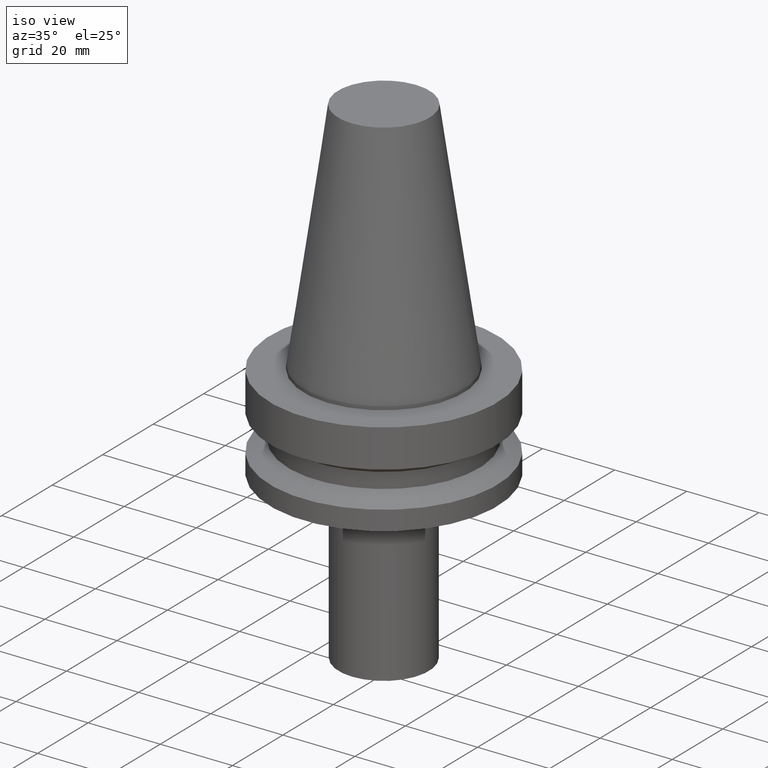
[diagram: clean part render]
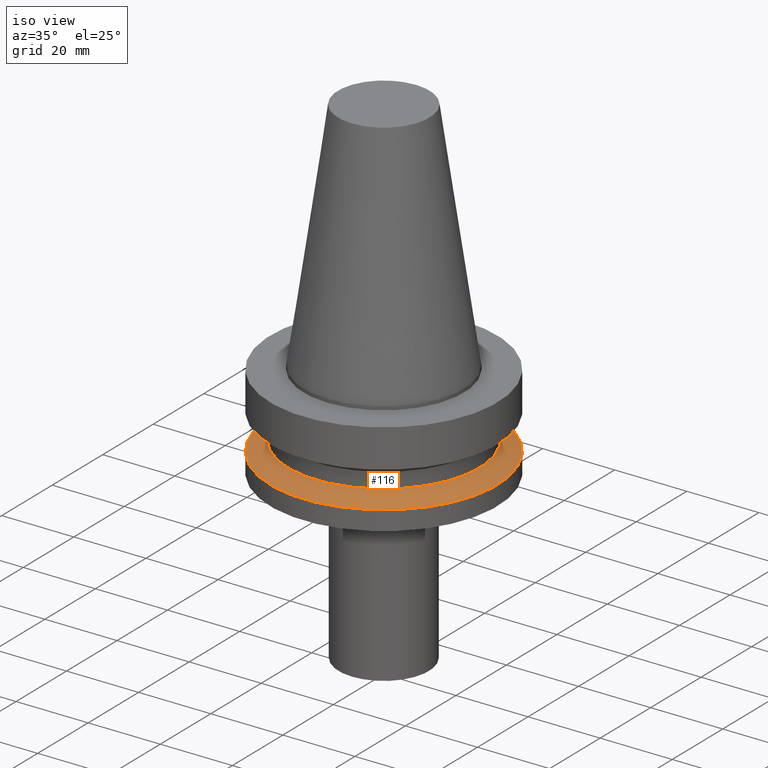
[diagram: same view with one face highlighted and labeled with its STEP entity id]
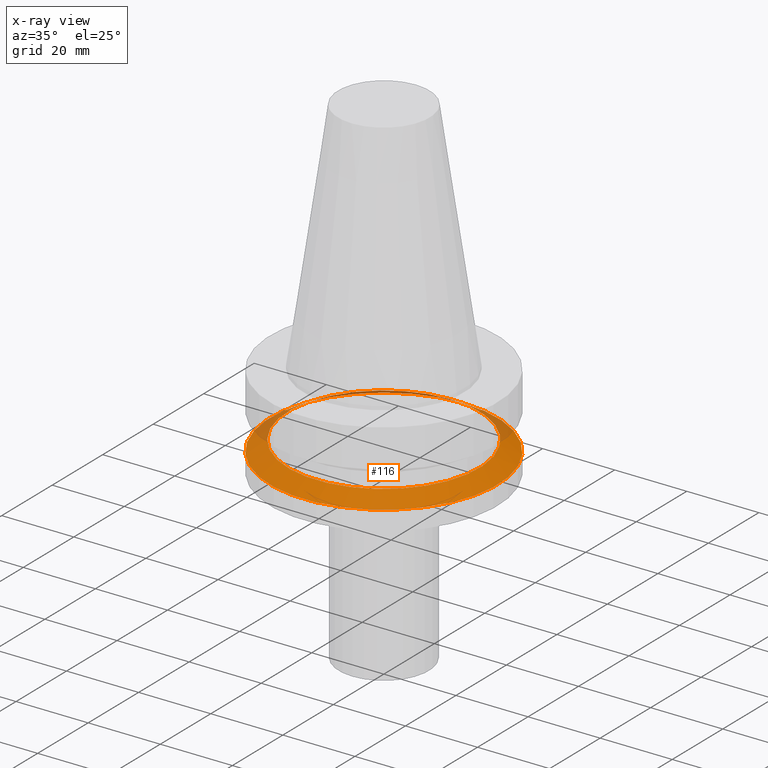
[diagram: x-ray of the same camera — body ghosted, the highlighted face saturated]
A machine part, iso view. The second image highlights one B-rep face of the part: STEP entity #116.
The next image is the same camera in x-ray: the body ghosted, the highlighted face saturated — about 11% of this face is hidden behind the body in this view.
In plain terms, the highlighted conical surface has half-angle 60 deg.
Its self-contained STEP definition (entity closure, byte-faithful):
#67=EDGE_CURVE('Unnamed[1]',#163,#163,#164,.T.);
#116=ADVANCED_FACE('Unnamed[1]',(#237,#238),#239,.T.);
#121=EDGE_CURVE('Unnamed[1]',#246,#246,#247,.T.);
#163=VERTEX_POINT('',#286);
#164=CIRCLE('',#287,26.5);
#237=FACE_BOUND('',#378,.T.);
#238=FACE_BOUND('',#379,.T.);
#239=CONICAL_SURFACE('',#380,29.0000000000003,1.04719755119651);
#246=VERTEX_POINT('',#389);
#247=CIRCLE('',#390,31.5000000000007);
#286=CARTESIAN_POINT('',(1.1479681728942E-015,26.5,-18.7477430013855));
#287=AXIS2_PLACEMENT_3D('',#419,#420,#421);
#378=EDGE_LOOP('',(#500));
#379=EDGE_LOOP('',(#501));
#380=AXIS2_PLACEMENT_3D('',#502,#503,#504);
#389=CARTESIAN_POINT('',(1.32473071268174E-015,31.5000000000007,-21.6344943473346));
#390=AXIS2_PLACEMENT_3D('',#511,#512,#513);
#419=CARTESIAN_POINT('',(1.1479681728942E-015,3.69466861504035E-014,-18.7477430013855));
#420=DIRECTION('',(6.12323399573676E-017,-4.72374929569225E-016,-1.0));
#421=DIRECTION('',(2.40974695439514E-032,1.0,-4.72374929569225E-016));
#500=ORIENTED_EDGE('',*,*,#121,.F.);
#501=ORIENTED_EDGE('',*,*,#67,.T.);
#502=CARTESIAN_POINT('',(1.23634944278797E-015,3.62648716685402E-014,-20.1911186743601));
#503=DIRECTION('',(6.12323399573677E-017,-4.72374929569225E-016,-1.0));
#504=DIRECTION('',(2.40974695439514E-032,1.0,-4.72374929569225E-016));
#511=CARTESIAN_POINT('',(1.32473071268174E-015,3.55830571866769E-014,-21.6344943473346));
#512=DIRECTION('',(6.12323399573677E-017,-4.72374929569225E-016,-1.0));
#513=DIRECTION('',(2.40974695439514E-032,1.0,-4.72374929569225E-016));